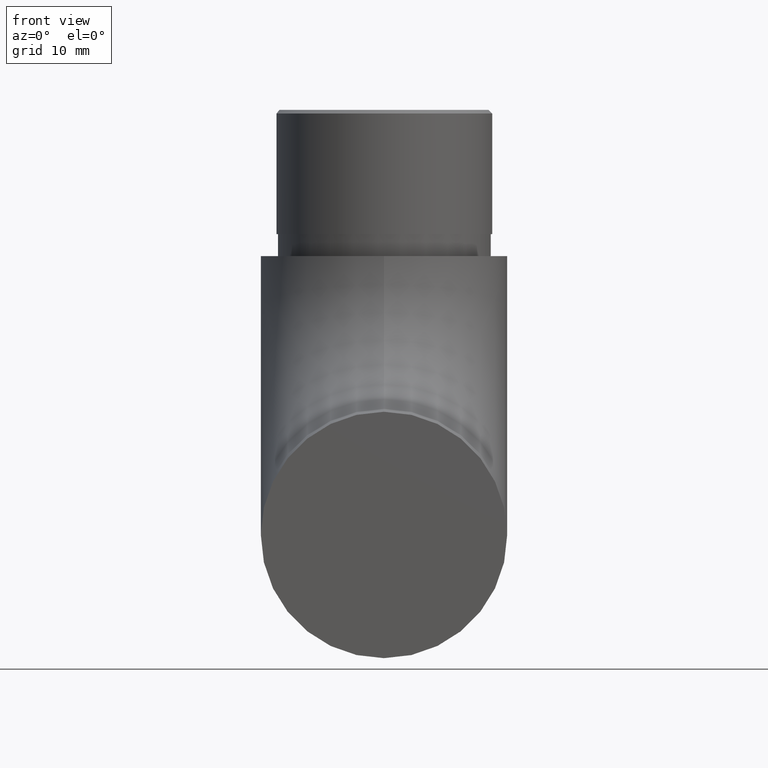
[diagram: clean part render]
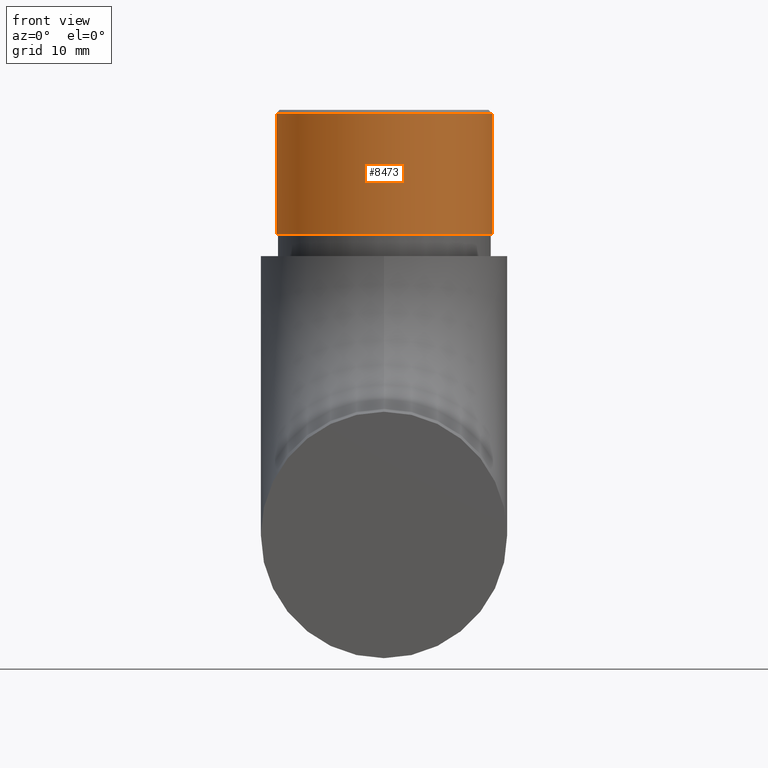
[diagram: same view with one face highlighted and labeled with its STEP entity id]
A machine part, front view. The second image highlights one B-rep face of the part: STEP entity #8473.
In plain terms, the highlighted cylindrical surface (bore or boss wall) has radius 14.8 mm, axis along (-0, -0, -1).
Its self-contained STEP definition (entity closure, byte-faithful):
#202 = VERTEX_POINT ( 'NONE', #2516 ) ;
#310 = DIRECTION ( 'NONE',  ( 0.0000000000000000000, 0.0000000000000000000, -1.000000000000000000 ) ) ;
#357 = CARTESIAN_POINT ( 'NONE',  ( 0.0000000000000000000, 40.14999999999999900, 41.14999999999999900 ) ) ;
#574 = EDGE_CURVE ( 'NONE', #202, #202, #8465, .T. ) ;
#1256 = DIRECTION ( 'NONE',  ( 1.000000000000000000, 0.0000000000000000000, 0.0000000000000000000 ) ) ;
#2218 = EDGE_LOOP ( 'NONE', ( #8798 ) ) ;
#2516 = CARTESIAN_POINT ( 'NONE',  ( 14.79999999999999900, 40.14999999999999900, 41.14999999999999900 ) ) ;
#2783 = CARTESIAN_POINT ( 'NONE',  ( 0.0000000000000000000, 40.14999999999999900, 58.14999999999999900 ) ) ;
#2959 = FACE_OUTER_BOUND ( 'NONE', #2218, .T. ) ;
#3021 = CARTESIAN_POINT ( 'NONE',  ( 0.0000000000000000000, 40.14999999999999900, 57.64999999999999100 ) ) ;
#3027 = EDGE_CURVE ( 'NONE', #6630, #6630, #6581, .T. ) ;
#3899 = AXIS2_PLACEMENT_3D ( 'NONE', #3021, #310, #6703 ) ;
#3941 = CYLINDRICAL_SURFACE ( 'NONE', #8759, 14.79999999999999900 ) ;
#6581 = CIRCLE ( 'NONE', #3899, 14.79999999999999900 ) ;
#6630 = VERTEX_POINT ( 'NONE', #7152 ) ;
#6703 = DIRECTION ( 'NONE',  ( 1.000000000000000000, 0.0000000000000000000, 0.0000000000000000000 ) ) ;
#6749 = DIRECTION ( 'NONE',  ( 0.0000000000000000000, 0.0000000000000000000, 1.000000000000000000 ) ) ;
#7152 = CARTESIAN_POINT ( 'NONE',  ( 14.79999999999999900, 40.14999999999999900, 57.64999999999999100 ) ) ;
#7565 = AXIS2_PLACEMENT_3D ( 'NONE', #357, #6749, #1256 ) ;
#8465 = CIRCLE ( 'NONE', #7565, 14.79999999999999900 ) ;
#8473 = ADVANCED_FACE ( 'NONE', ( #10230, #2959 ), #3941, .T. ) ;
#8759 = AXIS2_PLACEMENT_3D ( 'NONE', #2783, #10882, #10964 ) ;
#8798 = ORIENTED_EDGE ( 'NONE', *, *, #574, .T. ) ;
#10102 = ORIENTED_EDGE ( 'NONE', *, *, #3027, .T. ) ;
#10203 = EDGE_LOOP ( 'NONE', ( #10102 ) ) ;
#10230 = FACE_OUTER_BOUND ( 'NONE', #10203, .T. ) ;
#10882 = DIRECTION ( 'NONE',  ( -0.0000000000000000000, -0.0000000000000000000, -1.000000000000000000 ) ) ;
#10964 = DIRECTION ( 'NONE',  ( -1.000000000000000000, 0.0000000000000000000, 0.0000000000000000000 ) ) ;